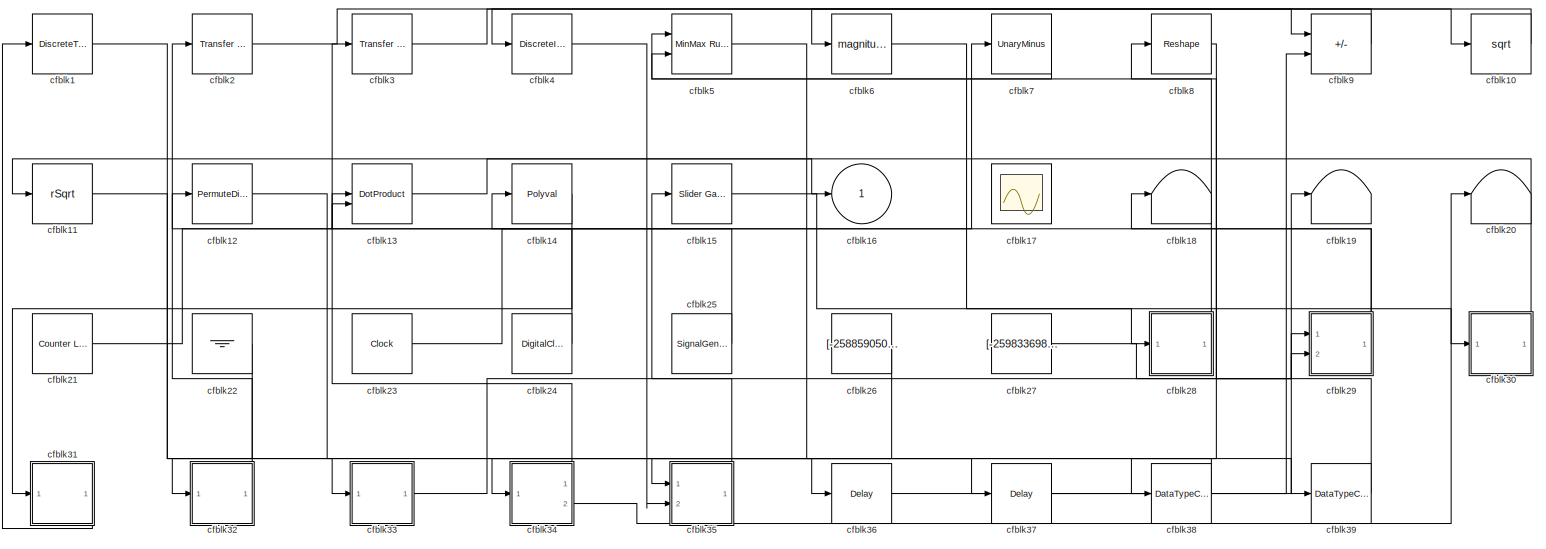
[diagram: root canvas - part 1/1, most of the canvas]
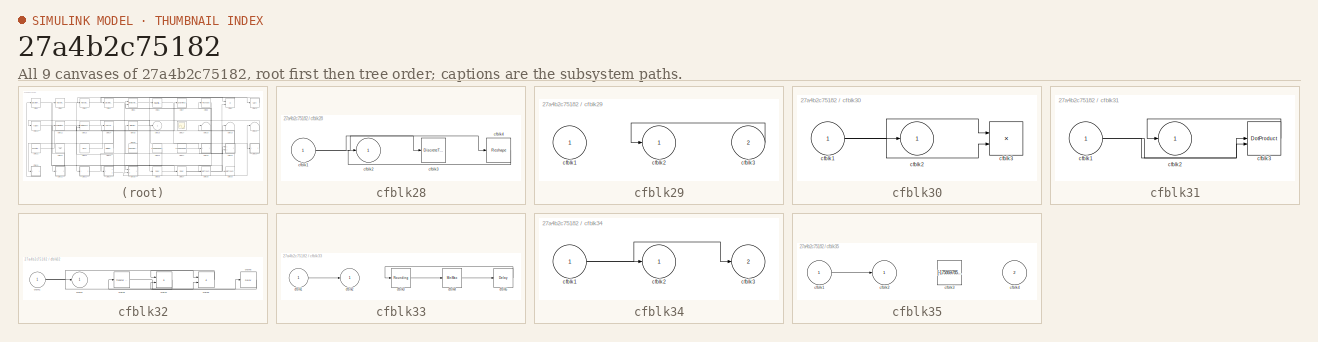
[diagram: thumbnail index - all 9 canvases of the model, root first then tree order]
MODEL slx_27a4b2c75182
KIND model
CONFIG AbsTol = auto
CONFIG EnableMultiTasking = off
CONFIG FixedStep = auto
CONFIG MaxStep = auto
CONFIG MinStep = auto
CONFIG RelTol = 1e-3
CONFIG SampleTimeConstraint = Unconstrained
CONFIG SolverName = VariableStepAuto
CONFIG StartTime = 0.0
CONFIG StopTime = 10.0
BLOCK [DiscreteTransferFcn] cfblk1
  InputPortMap = u0
  Ports = [1, 1]
  SampleTime = 1
BLOCK [Sqrt] cfblk10
BLOCK [Sqrt] cfblk11
  AlgorithmType = Newton-Raphson
  Operator = rSqrt
BLOCK [PermuteDimensions] cfblk12
BLOCK [DotProduct] cfblk13
  OutDataTypeStr = Inherit: Inherit via internal rule
BLOCK [Polyval] cfblk14
  Coefs = [ +2.081618890e-019, -1.441693666e-014, +4.719686976e-010, -8.536869453e-006, +1.621573104e-001, -8.087801117e+001 ]
BLOCK [Reference] cfblk15  REF=simulink/Math
Operations/Slider
Gain
  Ports = [1, 1]
  SourceBlock = simulink/Math\nOperations/Slider\nGain
  SourceProductBaseCode = SL
  SourceType = Slider Gain
BLOCK [Outport] cfblk16
BLOCK [Scope] cfblk17
  Floating = on
  NumInputPorts = 1
  Ports = []
BLOCK [Terminator] cfblk18
BLOCK [Terminator] cfblk19
BLOCK [Reference] cfblk2  REF=simulink/Discrete/Transfer Fcn
First Order
  Ports = [1, 1]
  SourceBlock = simulink/Discrete/Transfer Fcn\nFirst Order
  SourceProductBaseCode = SL
  SourceType = First Order Transfer Fcn
BLOCK [Terminator] cfblk20
BLOCK [Reference] cfblk21  REF=simulink/Sources/Counter
Limited
  Ports = [0, 1]
  SourceBlock = simulink/Sources/Counter\nLimited
  SourceProductBaseCode = SL
  SourceType = Counter Limited
BLOCK [Ground] cfblk22
BLOCK [Clock] cfblk23
BLOCK [DigitalClock] cfblk24
BLOCK [SignalGenerator] cfblk25
  Amplitude = [720675936.087589]
  Ports = [0, 1]
  WaveForm = square
BLOCK [Constant] cfblk26
  SampleTime = 1
  Value = [-258859050.971605]
BLOCK [Constant] cfblk27
  SampleTime = 1
  Value = [-259833698.706847]
BLOCK [SubSystem] cfblk28
  Ports = [1, 1]
  RequestExecContextInheritance = off
BLOCK [Inport] cfblk28/cfblk1
BLOCK [Outport] cfblk28/cfblk2
BLOCK [DiscreteTransferFcn] cfblk28/cfblk3
  InputPortMap = u0
  Ports = [1, 1]
  SampleTime = 1
BLOCK [Reshape] cfblk28/cfblk4
  Ports = [1, 1]
BLOCK [SubSystem] cfblk29
  Ports = [2, 1]
  RequestExecContextInheritance = off
BLOCK [Inport] cfblk29/cfblk1
BLOCK [Outport] cfblk29/cfblk2
BLOCK [Inport] cfblk29/cfblk3
  Port = 2
BLOCK [Reference] cfblk3  REF=simulink/Discrete/Transfer Fcn
Real Zero
  Ports = [1, 1]
  SourceBlock = simulink/Discrete/Transfer Fcn\nReal Zero
  SourceProductBaseCode = SL
  SourceType = Transfer Fcn Real Zero
BLOCK [SubSystem] cfblk30
  Ports = [1, 1]
  RequestExecContextInheritance = off
BLOCK [Inport] cfblk30/cfblk1
BLOCK [Outport] cfblk30/cfblk2
BLOCK [Product] cfblk30/cfblk3
  Ports = [2, 1]
BLOCK [SubSystem] cfblk31
  Ports = [1, 1]
  RequestExecContextInheritance = off
BLOCK [Inport] cfblk31/cfblk1
BLOCK [Outport] cfblk31/cfblk2
BLOCK [DotProduct] cfblk31/cfblk3
  OutDataTypeStr = Inherit: Inherit via internal rule
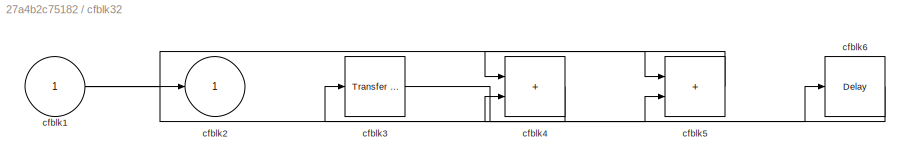
BLOCK [SubSystem] cfblk32
  Ports = [1, 1]
  RequestExecContextInheritance = off
BLOCK [Inport] cfblk32/cfblk1
BLOCK [Outport] cfblk32/cfblk2
BLOCK [Reference] cfblk32/cfblk3  REF=simulink/Discrete/Transfer Fcn
Real Zero
  Ports = [1, 1]
  SourceBlock = simulink/Discrete/Transfer Fcn\nReal Zero
  SourceProductBaseCode = SL
  SourceType = Transfer Fcn Real Zero
BLOCK [Sum] cfblk32/cfblk4
  IconShape = rectangular
  Ports = [2, 1]
BLOCK [Sum] cfblk32/cfblk5
  IconShape = rectangular
  Ports = [2, 1]
BLOCK [Delay] cfblk32/cfblk6
  InputPortMap = u0
  Ports = [1, 1]
  SampleTime = 1
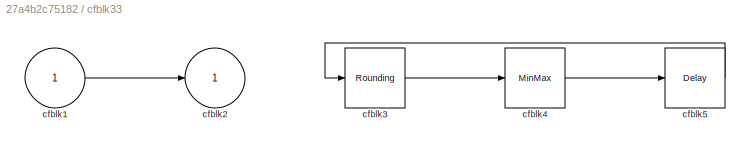
BLOCK [SubSystem] cfblk33
  Ports = [1, 1]
  RequestExecContextInheritance = off
BLOCK [Inport] cfblk33/cfblk1
BLOCK [Outport] cfblk33/cfblk2
BLOCK [Rounding] cfblk33/cfblk3
BLOCK [MinMax] cfblk33/cfblk4
  Ports = [1, 1]
BLOCK [Delay] cfblk33/cfblk5
  InputPortMap = u0
  Ports = [1, 1]
  SampleTime = 1
BLOCK [SubSystem] cfblk34
  Ports = [1, 2]
  RequestExecContextInheritance = off
BLOCK [Inport] cfblk34/cfblk1
BLOCK [Outport] cfblk34/cfblk2
BLOCK [Outport] cfblk34/cfblk3
  Port = 2
BLOCK [SubSystem] cfblk35
  Ports = [2, 1]
  RequestExecContextInheritance = off
BLOCK [Inport] cfblk35/cfblk1
BLOCK [Outport] cfblk35/cfblk2
BLOCK [Constant] cfblk35/cfblk3
  SampleTime = 1
  Value = [-175869785.333328]
BLOCK [Inport] cfblk35/cfblk4
  Port = 2
BLOCK [Delay] cfblk36
  InputPortMap = u0
  Ports = [1, 1]
  SampleTime = 1
BLOCK [Delay] cfblk37
  InputPortMap = u0
  Ports = [1, 1]
  SampleTime = 1
BLOCK [DataTypeConversion] cfblk38
  RndMeth = Floor
  SaturateOnIntegerOverflow = off
BLOCK [DataTypeConversion] cfblk39
  RndMeth = Floor
  SaturateOnIntegerOverflow = off
BLOCK [DiscreteIntegrator] cfblk4
  ICPrevOutput = DiscIntNeverNeededParam
  ICPrevScaledInput = DiscIntNeverNeededParam
  InitialConditionSetting = Auto
  Ports = [1, 1]
BLOCK [Reference] cfblk5  REF=simulink/Math
Operations/MinMax
Running
Resettable
  Ports = [2, 1]
  SourceBlock = simulink/Math\nOperations/MinMax\nRunning\nResettable
  SourceProductBaseCode = SL
  SourceType = MinMax Running Resettable
BLOCK [Math] cfblk6
  Operator = magnitude^2
  Ports = [1, 1]
BLOCK [UnaryMinus] cfblk7
BLOCK [Reshape] cfblk8
  Ports = [1, 1]
BLOCK [Sum] cfblk9
  IconShape = rectangular
  Inputs = -+
  Ports = [2, 1]
LINE cfblk10:1 -> cfblk6:1
LINE cfblk11:1 -> cfblk39:1
LINE cfblk12:1 -> cfblk36:1
LINE cfblk13:1 -> cfblk16:1
LINE cfblk14:1 -> cfblk31:1
LINE cfblk15:1 -> cfblk28:1
LINE cfblk1:1 -> cfblk33:1
LINE cfblk21:1 -> cfblk13:1
LINE cfblk22:1 -> cfblk32:1
LINE cfblk23:1 -> cfblk7:1
LINE cfblk24:1 -> cfblk3:1
LINE cfblk25:1 -> cfblk14:1
LINE cfblk26:1 -> cfblk35:1
LINE cfblk27:1 -> cfblk19:1
NET cfblk28/cfblk1:1 -> cfblk28/cfblk3:1, cfblk28/cfblk4:1
LINE cfblk28/cfblk4:1 -> cfblk28/cfblk2:1
LINE cfblk28:1 -> cfblk5:1
LINE cfblk29/cfblk3:1 -> cfblk29/cfblk2:1
NET cfblk29:1 -> cfblk12:1, cfblk18:1
LINE cfblk2:1 -> cfblk9:1
NET cfblk30/cfblk1:1 -> cfblk30/cfblk2:1, cfblk30/cfblk3:1, cfblk30/cfblk3:2
LINE cfblk30:1 -> cfblk11:1
NET cfblk31/cfblk1:1 -> cfblk31/cfblk3:1, cfblk31/cfblk3:2
LINE cfblk31/cfblk3:1 -> cfblk31/cfblk2:1
LINE cfblk31:1 -> cfblk1:1
NET cfblk32/cfblk1:1 -> cfblk32/cfblk2:1, cfblk32/cfblk5:1, cfblk32/cfblk5:2
LINE cfblk32/cfblk3:1 -> cfblk32/cfblk6:1
LINE cfblk32/cfblk4:1 -> cfblk32/cfblk3:1
LINE cfblk32/cfblk5:1 -> cfblk32/cfblk4:1
LINE cfblk32/cfblk6:1 -> cfblk32/cfblk4:2
LINE cfblk32:1 -> cfblk2:1
LINE cfblk33/cfblk1:1 -> cfblk33/cfblk2:1
LINE cfblk33/cfblk3:1 -> cfblk33/cfblk4:1
LINE cfblk33/cfblk4:1 -> cfblk33/cfblk5:1
LINE cfblk33/cfblk5:1 -> cfblk33/cfblk3:1
LINE cfblk33:1 -> cfblk29:1
NET cfblk34/cfblk1:1 -> cfblk34/cfblk2:1, cfblk34/cfblk3:1
LINE cfblk34:1 -> cfblk13:2
LINE cfblk34:2 -> cfblk20:1
LINE cfblk35/cfblk1:1 -> cfblk35/cfblk2:1
LINE cfblk35:1 -> cfblk15:1
LINE cfblk36:1 -> cfblk29:2
LINE cfblk37:1 -> cfblk9:2
LINE cfblk38:1 -> cfblk34:1
LINE cfblk39:1 -> cfblk8:1
LINE cfblk3:1 -> cfblk10:1
LINE cfblk4:1 -> cfblk35:2
LINE cfblk5:1 -> cfblk37:1
LINE cfblk6:1 -> cfblk30:1
LINE cfblk7:1 -> cfblk5:2
LINE cfblk8:1 -> cfblk38:1
LINE cfblk9:1 -> cfblk4:1
note: NET lines group one-source signal fan-out (src -> all destinations, sorted); 1:1 wires keep LINE
